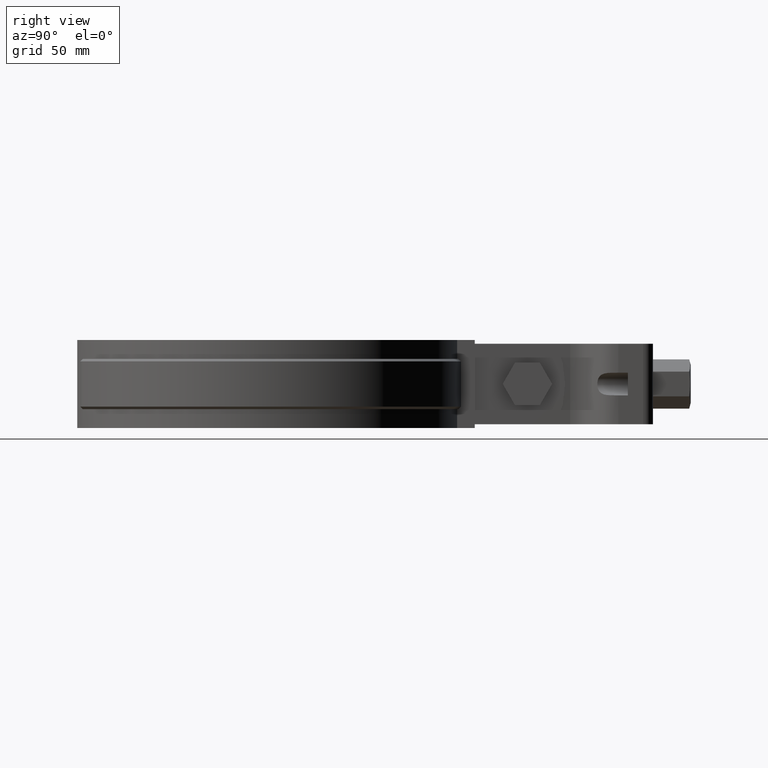
[diagram: clean part render]
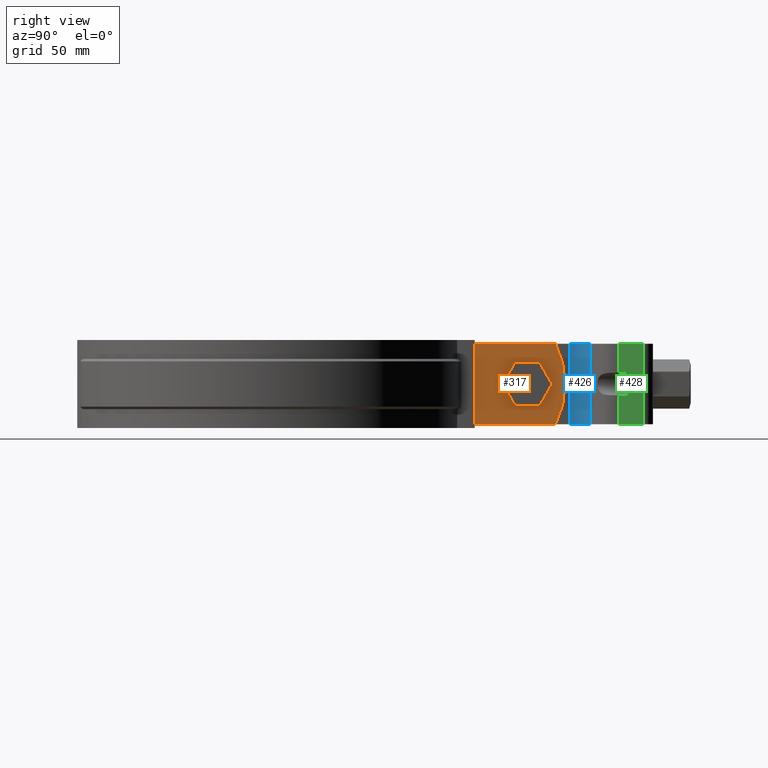
[diagram: same view with three faces highlighted in distinct colors, each labeled with its STEP entity id]
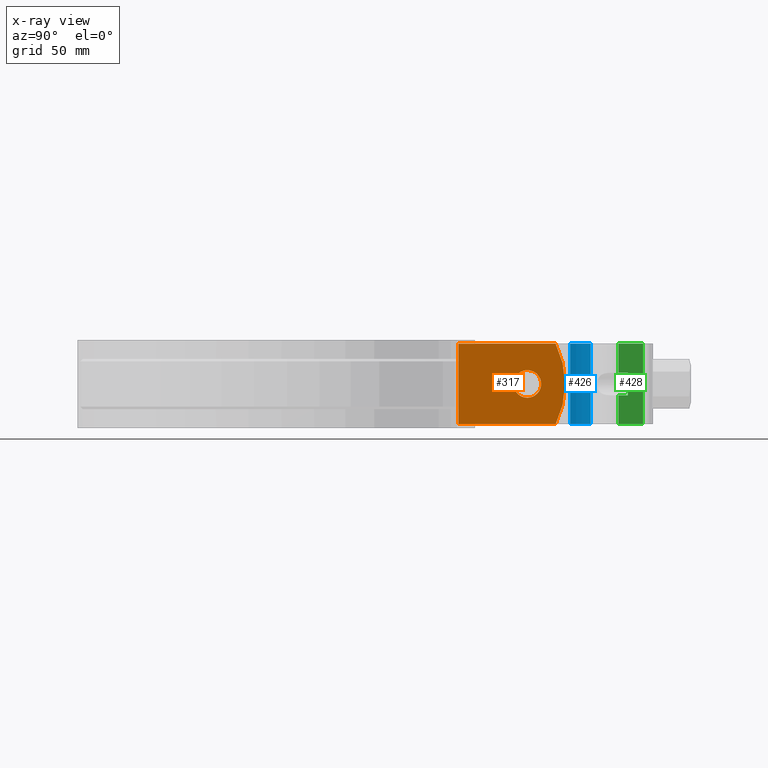
[diagram: x-ray of the same camera — body ghosted, the three highlighted faces saturated]
A machine part, right view with three faces highlighted in distinct colors.
The next image is the same camera in x-ray (body ghosted, the three faces saturated) — at least one of them is partly hidden behind the body in this view.
Their STEP definitions:

[orange] entity #317 — the highlighted planar face has unit normal (1, 0, 0).
#317 = ADVANCED_FACE( '', ( #493, #494 ), #495, .T. );
#493 = FACE_OUTER_BOUND( '', #874, .T. );
#494 = FACE_BOUND( '', #875, .T. );
#495 = PLANE( '', #876 );
#874 = EDGE_LOOP( '', ( #2023, #2024, #2025, #2026 ) );
#875 = EDGE_LOOP( '', ( #2027 ) );
#876 = AXIS2_PLACEMENT_3D( '', #2028, #2029, #2030 );
#2023 = ORIENTED_EDGE( '', *, *, #4989, .T. );
#2024 = ORIENTED_EDGE( '', *, *, #4990, .T. );
#2025 = ORIENTED_EDGE( '', *, *, #4983, .F. );
#2026 = ORIENTED_EDGE( '', *, *, #4991, .T. );
#2027 = ORIENTED_EDGE( '', *, *, #4992, .F. );
#2028 = CARTESIAN_POINT( '', ( 6.50000000000000, 118.337141712794, 4.33680868994202E-016 ) );
#2029 = DIRECTION( '', ( 1.00000000000000, 2.18531126355618E-049, 3.62806898401941E-033 ) );
#2030 = DIRECTION( '', ( 0.000000000000000, 1.00000000000000, -6.02334540269725E-017 ) );
#4983 = EDGE_CURVE( '', #5482, #5484, #5485, .F. );
#4989 = EDGE_CURVE( '', #5495, #5496, #5497, .F. );
#4990 = EDGE_CURVE( '', #5496, #5484, #5498, .T. );
#4991 = EDGE_CURVE( '', #5482, #5495, #5499, .T. );
#4992 = EDGE_CURVE( '', #5500, #5500, #5501, .T. );
#5482 = VERTEX_POINT( '', #6448 );
#5484 = VERTEX_POINT( '', #6451 );
#5485 = LINE( '', #6452, #6453 );
#5495 = VERTEX_POINT( '', #6465 );
#5496 = VERTEX_POINT( '', #6466 );
#5497 = LINE( '', #6467, #6468 );
#5498 = LINE( '', #6469, #6470 );
#5499 = CIRCLE( '', #6471, 36.0000000000000 );
#5500 = VERTEX_POINT( '', #6472 );
#5501 = CIRCLE( '', #6473, 5.50000000000000 );
#6448 = CARTESIAN_POINT( '', ( 6.50000000000001, 114.586172705988, -32.0000000000000 ) );
#6451 = CARTESIAN_POINT( '', ( 6.50000000000001, 75.8680433384175, -32.0000000000000 ) );
#6452 = CARTESIAN_POINT( '', ( 6.50000000000000, 118.337141712794, -32.0000000000000 ) );
#6453 = VECTOR( '', #9391, 1000.00000000000 );
#6465 = CARTESIAN_POINT( '', ( 6.50000000000001, 114.586172705988, 0.000000000000000 ) );
#6466 = CARTESIAN_POINT( '', ( 6.50000000000001, 75.8680433384175, 4.33680868994202E-016 ) );
#6467 = CARTESIAN_POINT( '', ( 6.50000000000000, 118.337141712794, 4.33680868994202E-016 ) );
#6468 = VECTOR( '', #9403, 1000.00000000000 );
#6469 = CARTESIAN_POINT( '', ( 6.50000000000001, 75.8680433384175, -32.0000000000000 ) );
#6470 = VECTOR( '', #9404, 1000.00000000000 );
#6471 = AXIS2_PLACEMENT_3D( '', #9405, #9406, #9407 );
#6472 = CARTESIAN_POINT( '', ( 6.50000000000000, 103.337141712794, -21.5000000000000 ) );
#6473 = AXIS2_PLACEMENT_3D( '', #9408, #9409, #9410 );
#9391 = DIRECTION( '', ( -2.18531126355618E-049, 1.00000000000000, 0.000000000000000 ) );
#9403 = DIRECTION( '', ( -2.18531126355618E-049, 1.00000000000000, 0.000000000000000 ) );
#9404 = DIRECTION( '', ( 0.000000000000000, 0.000000000000000, -1.00000000000000 ) );
#9405 = CARTESIAN_POINT( '', ( 6.50000000000001, 82.3371417127935, -16.0000000000000 ) );
#9406 = DIRECTION( '', ( 1.00000000000000, 2.18531126355618E-049, 3.62806898401941E-033 ) );
#9407 = DIRECTION( '', ( 3.62806898401941E-033, 0.000000000000000, -1.00000000000000 ) );
#9408 = CARTESIAN_POINT( '', ( 6.50000000000000, 103.337141712794, -16.0000000000000 ) );
#9409 = DIRECTION( '', ( 1.00000000000000, 2.18531126355618E-049, 3.62806898401941E-033 ) );
#9410 = DIRECTION( '', ( 3.62806898401941E-033, 0.000000000000000, -1.00000000000000 ) );

[blue] entity #426 — the highlighted cylindrical surface (edge-blend (fillet) strip) has radius 10 mm, axis along (0, 0, 1).
#426 = ADVANCED_FACE( '', ( #728 ), #729, .F. );
#728 = FACE_OUTER_BOUND( '', #1855, .T. );
#729 = CYLINDRICAL_SURFACE( '', #1856, 10.0000000000000 );
#1855 = EDGE_LOOP( '', ( #4489, #4490, #4491, #4492 ) );
#1856 = AXIS2_PLACEMENT_3D( '', #4493, #4494, #4495 );
#4489 = ORIENTED_EDGE( '', *, *, #5340, .F. );
#4490 = ORIENTED_EDGE( '', *, *, #5341, .F. );
#4491 = ORIENTED_EDGE( '', *, *, #5244, .T. );
#4492 = ORIENTED_EDGE( '', *, *, #5342, .T. );
#4493 = CARTESIAN_POINT( '', ( 15.0000000000000, 120.338876979655, -32.0000000000000 ) );
#4494 = DIRECTION( '', ( 0.000000000000000, 0.000000000000000, 1.00000000000000 ) );
#4495 = DIRECTION( '', ( 0.000000000000000, 1.00000000000000, 0.000000000000000 ) );
#5244 = EDGE_CURVE( '', #5931, #5929, #5932, .F. );
#5340 = EDGE_CURVE( '', #6091, #6092, #6093, .F. );
#5341 = EDGE_CURVE( '', #5931, #6091, #6094, .T. );
#5342 = EDGE_CURVE( '', #5929, #6092, #6095, .T. );
#5929 = VERTEX_POINT( '', #8692 );
#5931 = VERTEX_POINT( '', #8695 );
#5932 = CIRCLE( '', #8696, 10.0000000000000 );
#6091 = VERTEX_POINT( '', #9018 );
#6092 = VERTEX_POINT( '', #9019 );
#6093 = CIRCLE( '', #9020, 10.0000000000000 );
#6094 = LINE( '', #9021, #9022 );
#6095 = LINE( '', #9023, #9024 );
#8692 = CARTESIAN_POINT( '', ( 9.26423563648952, 128.530397422545, -32.0000000000000 ) );
#8695 = CARTESIAN_POINT( '', ( 5.00000000000001, 120.338876979655, -32.0000000000000 ) );
#8696 = AXIS2_PLACEMENT_3D( '', #9719, #9720, #9721 );
#9018 = CARTESIAN_POINT( '', ( 5.00000000000001, 120.338876979655, 0.000000000000000 ) );
#9019 = CARTESIAN_POINT( '', ( 9.26423563648952, 128.530397422545, 0.000000000000000 ) );
#9020 = AXIS2_PLACEMENT_3D( '', #9875, #9876, #9877 );
#9021 = CARTESIAN_POINT( '', ( 5.00000000000001, 120.338876979655, -32.0000000000000 ) );
#9022 = VECTOR( '', #9878, 1000.00000000000 );
#9023 = CARTESIAN_POINT( '', ( 9.26423563648955, 128.530397422545, -32.0000000000000 ) );
#9024 = VECTOR( '', #9879, 1000.00000000000 );
#9719 = CARTESIAN_POINT( '', ( 15.0000000000000, 120.338876979655, -32.0000000000000 ) );
#9720 = DIRECTION( '', ( 0.000000000000000, 0.000000000000000, 1.00000000000000 ) );
#9721 = DIRECTION( '', ( 1.00000000000000, 0.000000000000000, 0.000000000000000 ) );
#9875 = CARTESIAN_POINT( '', ( 15.0000000000000, 120.338876979655, 0.000000000000000 ) );
#9876 = DIRECTION( '', ( 0.000000000000000, 0.000000000000000, 1.00000000000000 ) );
#9877 = DIRECTION( '', ( 1.00000000000000, 0.000000000000000, 0.000000000000000 ) );
#9878 = DIRECTION( '', ( 0.000000000000000, 0.000000000000000, 1.00000000000000 ) );
#9879 = DIRECTION( '', ( 0.000000000000000, 0.000000000000000, 1.00000000000000 ) );

[green] entity #428 — the highlighted planar face has unit normal (1, -0, 0).
#428 = ADVANCED_FACE( '', ( #732 ), #733, .T. );
#732 = FACE_OUTER_BOUND( '', #1859, .T. );
#733 = PLANE( '', #1860 );
#1859 = EDGE_LOOP( '', ( #4505, #4506, #4507, #4508, #4509, #4510, #4511, #4512 ) );
#1860 = AXIS2_PLACEMENT_3D( '', #4513, #4514, #4515 );
#4505 = ORIENTED_EDGE( '', *, *, #5266, .F. );
#4506 = ORIENTED_EDGE( '', *, *, #5268, .T. );
#4507 = ORIENTED_EDGE( '', *, *, #5335, .F. );
#4508 = ORIENTED_EDGE( '', *, *, #5271, .F. );
#4509 = ORIENTED_EDGE( '', *, *, #5281, .F. );
#4510 = ORIENTED_EDGE( '', *, *, #5241, .T. );
#4511 = ORIENTED_EDGE( '', *, *, #5332, .T. );
#4512 = ORIENTED_EDGE( '', *, *, #5344, .F. );
#4513 = CARTESIAN_POINT( '', ( 17.5000000000000, 139.502812218311, -32.0000000000000 ) );
#4514 = DIRECTION( '', ( 1.00000000000000, -6.93889390390723E-017, 0.000000000000000 ) );
#4515 = DIRECTION( '', ( 0.000000000000000, 0.000000000000000, 1.00000000000000 ) );
#5241 = EDGE_CURVE( '', #5925, #5923, #5926, .F. );
#5266 = EDGE_CURVE( '', #5970, #5972, #5973, .T. );
#5268 = EDGE_CURVE( '', #5970, #5975, #5976, .F. );
#5271 = EDGE_CURVE( '', #5979, #5981, #5982, .F. );
#5281 = EDGE_CURVE( '', #5925, #5979, #5998, .T. );
#5332 = EDGE_CURVE( '', #5923, #6078, #6081, .T. );
#5335 = EDGE_CURVE( '', #5981, #5975, #6084, .F. );
#5344 = EDGE_CURVE( '', #5972, #6078, #6097, .T. );
#5923 = VERTEX_POINT( '', #8685 );
#5925 = VERTEX_POINT( '', #8687 );
#5926 = LINE( '', #8688, #8689 );
#5970 = VERTEX_POINT( '', #8747 );
#5972 = VERTEX_POINT( '', #8768 );
#5973 = LINE( '', #8769, #8770 );
#5975 = VERTEX_POINT( '', #8772 );
#5976 = LINE( '', #8773, #8774 );
#5979 = VERTEX_POINT( '', #8777 );
#5981 = VERTEX_POINT( '', #8794 );
#5982 = LINE( '', #8795, #8796 );
#5998 = LINE( '', #8816, #8817 );
#6078 = VERTEX_POINT( '', #9000 );
#6081 = LINE( '', #9003, #9004 );
#6084 = LINE( '', #9008, #9009 );
#6097 = LINE( '', #9027, #9028 );
#8685 = CARTESIAN_POINT( '', ( 17.5000000000000, 149.297141712794, -32.0000000000000 ) );
#8687 = CARTESIAN_POINT( '', ( 17.5000000000000, 139.502812218311, -32.0000000000000 ) );
#8688 = CARTESIAN_POINT( '', ( 17.5000000000000, 139.502812218311, -32.0000000000000 ) );
#8689 = VECTOR( '', #9714, 1000.00000000000 );
#8747 = CARTESIAN_POINT( '', ( 17.5000000000000, 139.502812218311, -11.5000000000000 ) );
#8768 = CARTESIAN_POINT( '', ( 17.5000000000000, 139.502812218311, -8.67361737988403E-016 ) );
#8769 = CARTESIAN_POINT( '', ( 17.5000000000000, 139.502812218311, -32.0000000000000 ) );
#8770 = VECTOR( '', #9756, 1000.00000000000 );
#8772 = CARTESIAN_POINT( '', ( 17.5000000000000, 143.297141712794, -11.5000000000000 ) );
#8773 = CARTESIAN_POINT( '', ( 17.5000000000000, 128.297141712794, -11.5000000000000 ) );
#8774 = VECTOR( '', #9760, 1000.00000000000 );
#8777 = CARTESIAN_POINT( '', ( 17.5000000000000, 139.502812218311, -20.5000000000000 ) );
#8794 = CARTESIAN_POINT( '', ( 17.5000000000000, 143.297141712794, -20.5000000000000 ) );
#8795 = CARTESIAN_POINT( '', ( 17.5000000000000, 128.297141712794, -20.5000000000000 ) );
#8796 = VECTOR( '', #9764, 1000.00000000000 );
#8816 = CARTESIAN_POINT( '', ( 17.5000000000000, 139.502812218311, -32.0000000000000 ) );
#8817 = VECTOR( '', #9784, 1000.00000000000 );
#9000 = CARTESIAN_POINT( '', ( 17.5000000000000, 149.297141712794, -8.67361737988403E-016 ) );
#9003 = CARTESIAN_POINT( '', ( 17.5000000000000, 149.297141712794, -32.0000000000000 ) );
#9004 = VECTOR( '', #9861, 1000.00000000000 );
#9008 = CARTESIAN_POINT( '', ( 17.5000000000000, 143.297141712794, -16.0000000000000 ) );
#9009 = VECTOR( '', #9866, 1000.00000000000 );
#9027 = CARTESIAN_POINT( '', ( 17.5000000000000, 149.297141712794, -3.46944695195361E-015 ) );
#9028 = VECTOR( '', #9881, 1000.00000000000 );
#9714 = DIRECTION( '', ( -6.93889390390723E-017, -1.00000000000000, 0.000000000000000 ) );
#9756 = DIRECTION( '', ( 0.000000000000000, 0.000000000000000, 1.00000000000000 ) );
#9760 = DIRECTION( '', ( 4.11604168809451E-032, -1.00000000000000, 1.83690953073357E-016 ) );
#9764 = DIRECTION( '', ( 4.11604168809451E-032, -1.00000000000000, 1.83690953073357E-016 ) );
#9784 = DIRECTION( '', ( 0.000000000000000, 0.000000000000000, 1.00000000000000 ) );
#9861 = DIRECTION( '', ( 0.000000000000000, 0.000000000000000, 1.00000000000000 ) );
#9866 = DIRECTION( '', ( -1.27461203448363E-032, -1.83690953073357E-016, -1.00000000000000 ) );
#9881 = DIRECTION( '', ( 6.93889390390723E-017, 1.00000000000000, 0.000000000000000 ) );